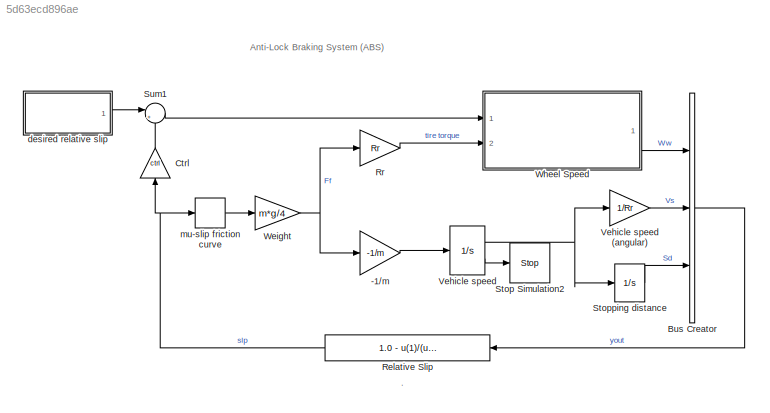
MODEL slx_5d63ecd896ae
KIND model
CONFIG AbsTol = 1e-6
CONFIG EnableMultiTasking = off
CONFIG FixedStep = auto
CONFIG MaxStep = .01
CONFIG MinStep = auto
CONFIG PreLoadFcn = % Load initialization data\n\nsldemo_absdata;
CONFIG RelTol = 1e-3
CONFIG SampleTimeConstraint = Unconstrained
CONFIG SolverName = ode45
CONFIG StartTime = 0.0
CONFIG StopFcn = if exist ('sldemo_absbrake_output')\n  sldemo_absbrakeplots;\nend
CONFIG StopTime = 25
BLOCK [Gain] -1//m
  Gain = -1/m
  OutDataTypeStr = Inherit: Same as input
  ParamDataTypeStr = Inherit: Same as input
  SaturateOnIntegerOverflow = on
BLOCK [BusCreator] Bus Creator
  DisplayOption = bar
  InheritFromInputs = on
  Inputs = 3
  Ports = [3, 1]
BLOCK [Gain] Ctrl
  Gain = ctrl
  NameLocation = left
  OutDataTypeStr = Inherit: Same as input
  ParamDataTypeStr = Inherit: Same as input
  SaturateOnIntegerOverflow = on
BLOCK [Fcn] Relative Slip
  Expr = 1.0 - u(1)/(u(2) + (u(2)==0)*eps)
BLOCK [Gain] Rr
  Gain = Rr
  OutDataTypeStr = Inherit: Same as input
  ParamDataTypeStr = Inherit: Same as input
  SaturateOnIntegerOverflow = on
BLOCK [Stop] Stop Simulation2
BLOCK [Integrator] Stopping distance
  LowerSaturationLimit = 0
  Ports = [1, 1]
  UpperSaturationLimit = 1000
BLOCK [Sum] Sum1
  InputSameDT = on
  Inputs = |+-
  OutDataTypeStr = Inherit: Same as first input
  Ports = [2, 1]
  SaturateOnIntegerOverflow = on
BLOCK [Integrator] Vehicle speed
  InitialCondition = v0
  LimitOutput = on
  LowerSaturationLimit = 0
  Ports = [1, 2]
  ShowSaturationPort = on
  UpperSaturationLimit = 1000
BLOCK [Gain] Vehicle speed (angular)
  Gain = 1/Rr
  OutDataTypeStr = Inherit: Same as input
  ParamDataTypeStr = Inherit: Same as input
  SaturateOnIntegerOverflow = on
BLOCK [Gain] Weight
  Gain = m*g/4
  OutDataTypeStr = Inherit: Same as input
  ParamDataTypeStr = Inherit: Same as input
  SaturateOnIntegerOverflow = on
BLOCK [ModelReference] Wheel Speed
  ModelNameDialog = sldemo_wheelspeed_absbrake
  ModelReferenceVersion = 1.68
  Ports = [2, 1]
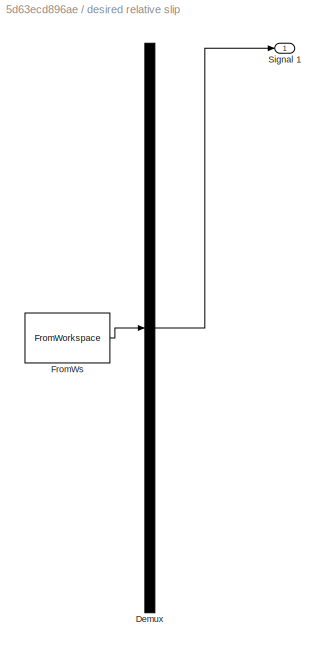
BLOCK [SubSystem] desired relative slip
  ClipboardFcn = sigbuilder_block('clipboard');
  CloseFcn = sigbuilder_block('close');
  ContinueFcn = sigbuilder_block('continue');
  CopyFcn = sigbuilder_block('copy');
  DeleteFcn = sigbuilder_block('delete');
  LoadFcn = sigbuilder_block('load',[437.6 153.75 550.4 359.25 ]);
  MaskHideContents = on
  ModelCloseFcn = sigbuilder_block('modelClose');
  NameChangeFcn = sigbuilder_block('namechange');
  OpenFcn = sigbuilder_block('open',[437.6 153.75 550.4 359.25 ]);
  PauseFcn = sigbuilder_block('pause');
  Ports = [0, 1]
  PreSaveFcn = sigbuilder_block('preSave');
  RequestExecContextInheritance = off
  StartFcn = sigbuilder_block('start');
  StopFcn = sigbuilder_block('stop');
  Tag = STV Subsys
BLOCK [Demux] desired relative slip/Demux
  DisplayOption = none
  Outputs = 1
  Ports = [1, 1]
  Tag = STV Demux
BLOCK [FromWorkspace] desired relative slip/FromWs
  Tag = STV FromWs
  VariableName = tuvar
BLOCK [Outport] desired relative slip/Signal 1
  Tag = STV Outport
BLOCK [Lookup_n-D] mu-slip friction curve
  BreakpointsForDimension1 = slip
  InputPortMap = u0
  NumberOfTableDimensions = 1
  Ports = [1, 1]
  SaturateOnIntegerOverflow = on
  Table = mu
ANNOTATION (root): .
ANNOTATION (root): Anti-Lock Braking System (ABS)
LINE -1//m:1 -> Vehicle speed:1
LINE Bus Creator:1 -> Relative Slip:1
LINE Ctrl:1 -> Sum1:2
NET Relative Slip:1 -> Ctrl:1, mu-slip friction curve:1
LINE Rr:1 -> Wheel Speed:2
LINE Stopping distance:1 -> Bus Creator:3
LINE Sum1:1 -> Wheel Speed:1
LINE Vehicle speed (angular):1 -> Bus Creator:2
NET Vehicle speed:1 -> Stopping distance:1, Vehicle speed (angular):1
LINE Vehicle speed:2 -> Stop Simulation2:1
NET Weight:1 -> -1//m:1, Rr:1
LINE Wheel Speed:1 -> Bus Creator:1
LINE desired relative slip:1 -> Sum1:1
LINE mu-slip friction curve:1 -> Weight:1
note: NET lines group one-source signal fan-out (src -> all destinations, sorted); 1:1 wires keep LINE
